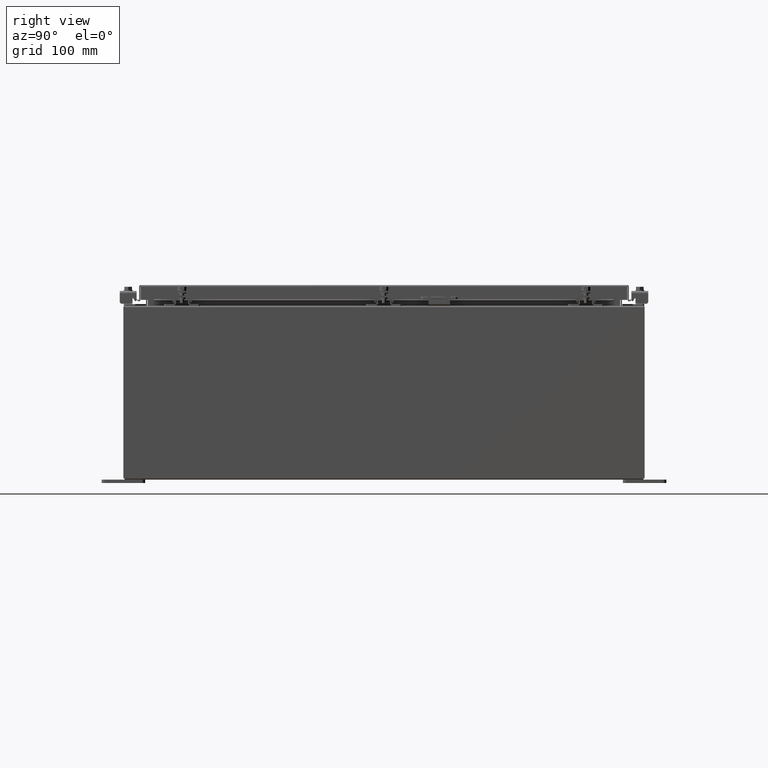
[diagram: clean part render]
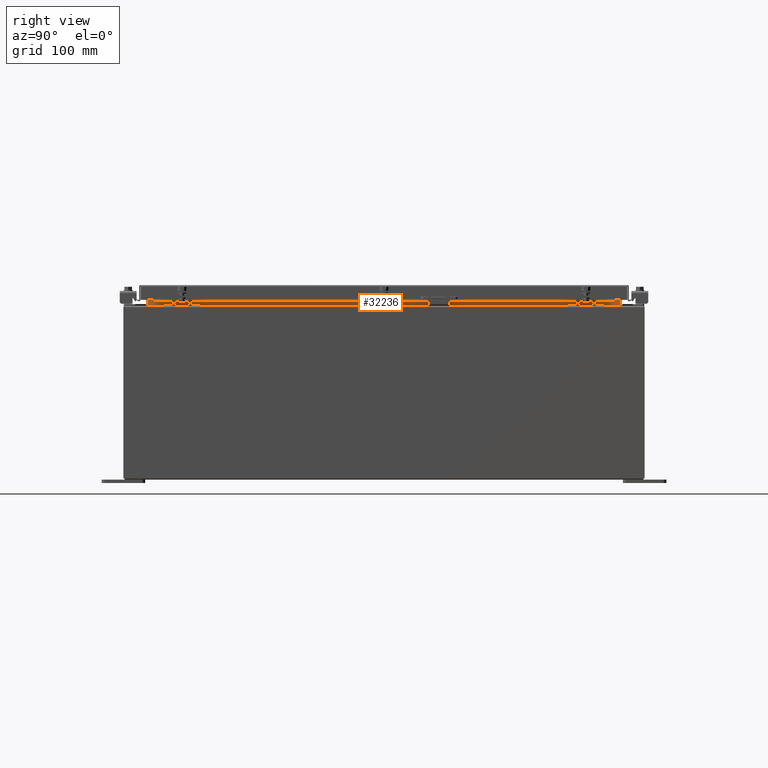
[diagram: same view with one face highlighted and labeled with its STEP entity id]
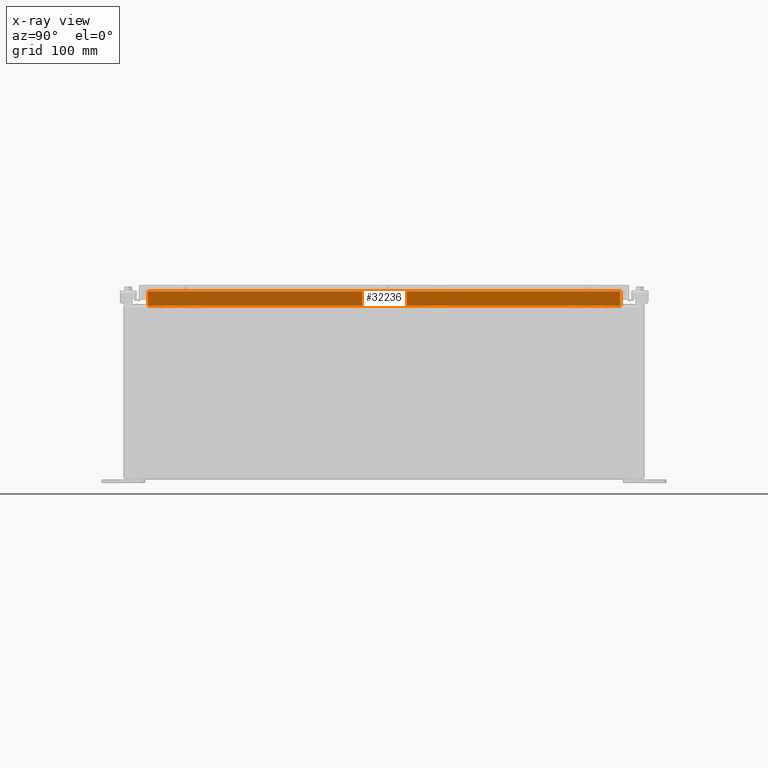
[diagram: x-ray of the same camera — body ghosted, the highlighted face saturated]
A machine part, right view. The second image highlights one B-rep face of the part: STEP entity #32236.
The next image is the same camera in x-ray: the body ghosted, the highlighted face saturated — about 0% of this face is hidden behind the body in this view.
In plain terms, the highlighted planar face has unit normal (1, 0, -0).
Its self-contained STEP definition (entity closure, byte-faithful):
#1828 = EDGE_CURVE ( 'NONE', #32479, #7274, #6067, .T. ) ;
#3328 = VECTOR ( 'NONE', #31959, 39.37007874015748100 ) ;
#3804 = EDGE_LOOP ( 'NONE', ( #26439, #31380, #33686, #12381 ) ) ;
#3863 = CARTESIAN_POINT ( 'NONE',  ( 10.69970000000003400, -13.59374999999999800, 10.85060000000001100 ) ) ;
#4210 = AXIS2_PLACEMENT_3D ( 'NONE', #33625, #6705, #7612 ) ;
#4337 = LINE ( 'NONE', #37429, #3328 ) ;
#5706 = FACE_OUTER_BOUND ( 'NONE', #3804, .T. ) ;
#6067 = LINE ( 'NONE', #3863, #33197 ) ;
#6527 = DIRECTION ( 'NONE',  ( -2.361913319930193300E-015, -0.0000000000000000000, -1.000000000000000000 ) ) ;
#6705 = DIRECTION ( 'NONE',  ( 1.000000000000000000, 0.0000000000000000000, -2.361913319930193300E-015 ) ) ;
#7274 = VERTEX_POINT ( 'NONE', #15495 ) ;
#7612 = DIRECTION ( 'NONE',  ( -2.361913319930193300E-015, 0.0000000000000000000, -1.000000000000000000 ) ) ;
#7735 = CARTESIAN_POINT ( 'NONE',  ( 10.69970000000003200, -13.59375000000000000, 9.938300000000010600 ) ) ;
#10545 = EDGE_CURVE ( 'NONE', #10761, #24613, #19691, .T. ) ;
#10761 = VERTEX_POINT ( 'NONE', #21509 ) ;
#12381 = ORIENTED_EDGE ( 'NONE', *, *, #33185, .F. ) ;
#12656 = EDGE_CURVE ( 'NONE', #7274, #10761, #18907, .T. ) ;
#14456 = CARTESIAN_POINT ( 'NONE',  ( 10.69970000000003200, -13.59374999999999300, 10.76290000000001100 ) ) ;
#15495 = CARTESIAN_POINT ( 'NONE',  ( 10.69970000000003400, -13.59374999999999800, 10.76290000000001100 ) ) ;
#17803 = DIRECTION ( 'NONE',  ( 0.0000000000000000000, 1.000000000000000000, 0.0000000000000000000 ) ) ;
#18171 = PLANE ( 'NONE',  #4210 ) ;
#18907 = LINE ( 'NONE', #14456, #27741 ) ;
#19691 = LINE ( 'NONE', #22969, #24652 ) ;
#21509 = CARTESIAN_POINT ( 'NONE',  ( 10.69970000000003200, 13.59374999999999300, 10.76290000000001100 ) ) ;
#22919 = CARTESIAN_POINT ( 'NONE',  ( 10.69970000000003200, 13.59375000000000000, 9.938300000000010600 ) ) ;
#22969 = CARTESIAN_POINT ( 'NONE',  ( 10.69970000000003200, 13.59374999999999800, 9.925300000000008900 ) ) ;
#24613 = VERTEX_POINT ( 'NONE', #22919 ) ;
#24652 = VECTOR ( 'NONE', #6527, 39.37007874015748100 ) ;
#26439 = ORIENTED_EDGE ( 'NONE', *, *, #10545, .F. ) ;
#27741 = VECTOR ( 'NONE', #17803, 39.37007874015748100 ) ;
#31380 = ORIENTED_EDGE ( 'NONE', *, *, #12656, .F. ) ;
#31584 = DIRECTION ( 'NONE',  ( 2.361913319930198800E-015, -0.0000000000000000000, 1.000000000000000000 ) ) ;
#31959 = DIRECTION ( 'NONE',  ( 8.038541222736223700E-017, -1.000000000000000000, 2.411562366820867200E-016 ) ) ;
#32236 = ADVANCED_FACE ( 'NONE', ( #5706 ), #18171, .T. ) ;
#32479 = VERTEX_POINT ( 'NONE', #7735 ) ;
#33185 = EDGE_CURVE ( 'NONE', #24613, #32479, #4337, .T. ) ;
#33197 = VECTOR ( 'NONE', #31584, 39.37007874015748100 ) ;
#33625 = CARTESIAN_POINT ( 'NONE',  ( 10.69970000000000900, 0.0000000000000000000, -2.527176394925710600E-014 ) ) ;
#33686 = ORIENTED_EDGE ( 'NONE', *, *, #1828, .F. ) ;
#37429 = CARTESIAN_POINT ( 'NONE',  ( 10.69970000000003400, 13.59374999999999800, 9.938300000000008800 ) ) ;